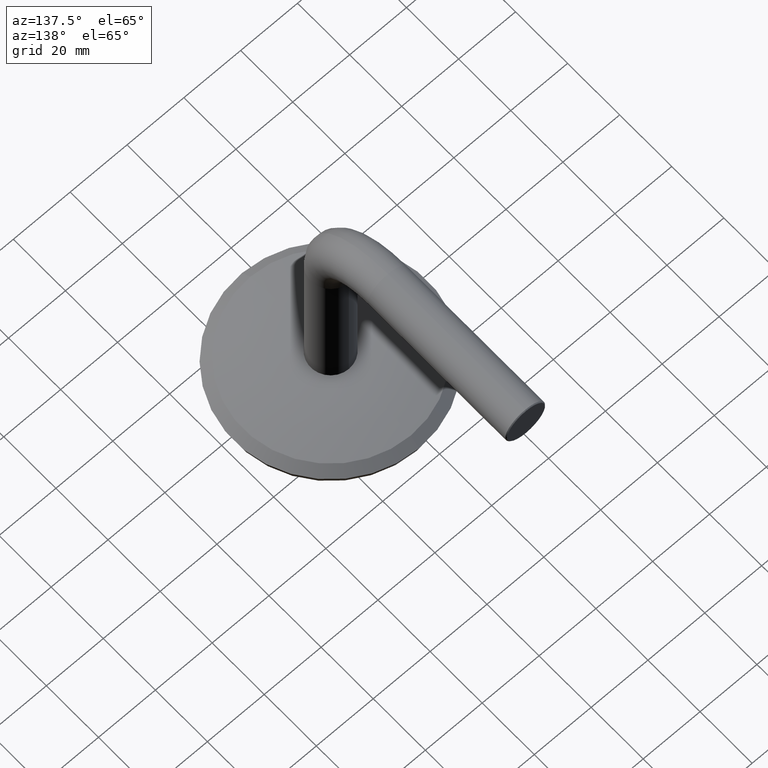
[diagram: clean part render]
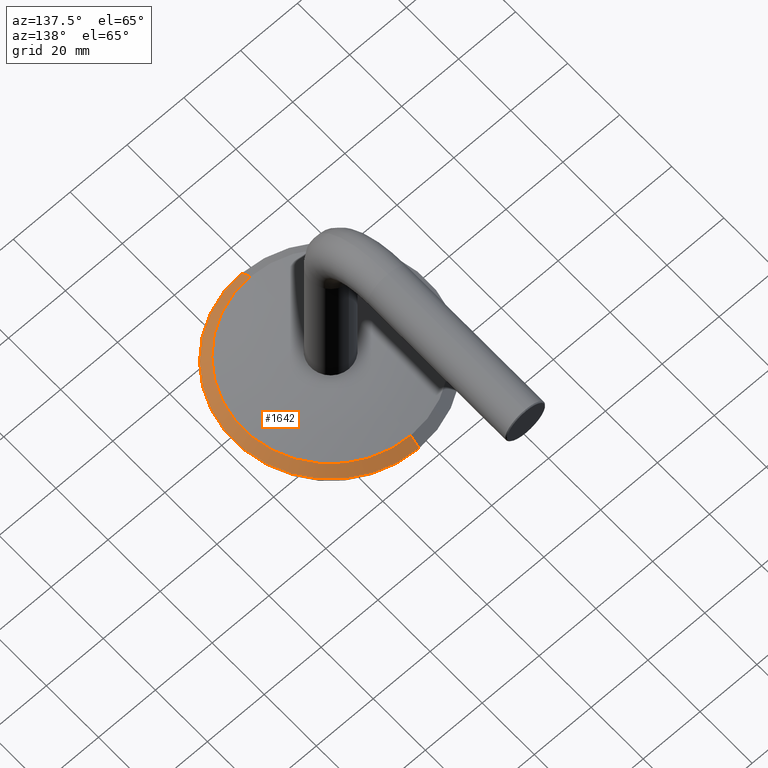
[diagram: same view with one face highlighted and labeled with its STEP entity id]
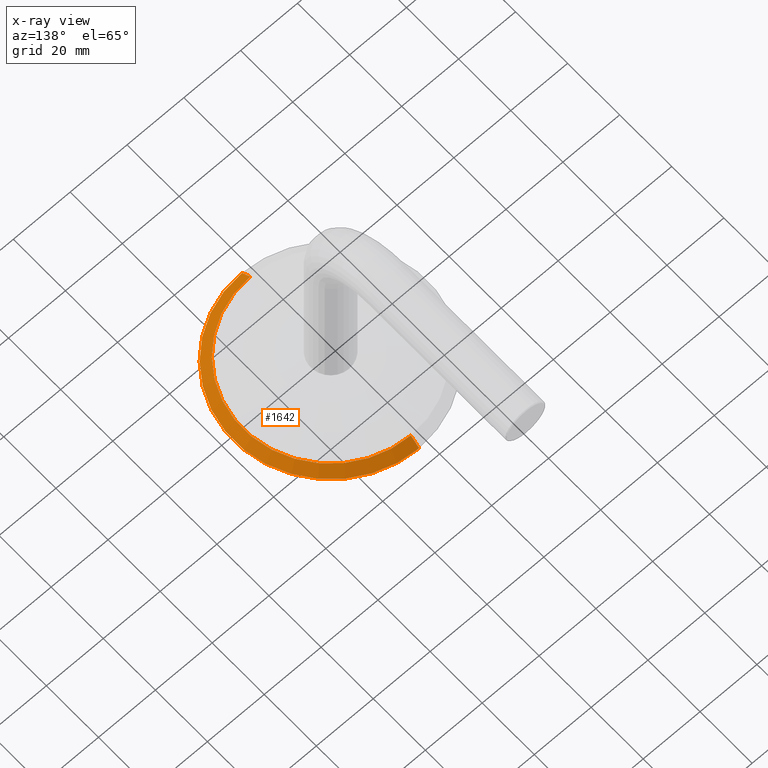
[diagram: x-ray of the same camera — body ghosted, the highlighted face saturated]
A machine part, auxiliary view. The second image highlights one B-rep face of the part: STEP entity #1642.
The next image is the same camera in x-ray: the body ghosted, the highlighted face saturated — about 0% of this face is hidden behind the body in this view.
In plain terms, the highlighted conical surface has half-angle 49.03 deg.
Its self-contained STEP definition (entity closure, byte-faithful):
#825 = CARTESIAN_POINT ( 'NONE',  ( 4.163799117101000559E-15, 3.070234033247562611, 34.00000000000000000 ) ) ;
#1033 = CARTESIAN_POINT ( 'NONE',  ( 0.000000000000000000, 5.832423396846378338, 0.000000000000000000 ) ) ;
#1327 = LINE ( 'NONE', #12561, #11121 ) ;
#1416 = DIRECTION ( 'NONE',  ( -0.000000000000000000, -1.000000000000000000, -0.000000000000000000 ) ) ;
#1642 = ADVANCED_FACE ( 'NONE', ( #6360 ), #7401, .T. ) ;
#2735 = CARTESIAN_POINT ( 'NONE',  ( 0.000000000000000000, 5.832423396846378338, -30.81906958466698754 ) ) ;
#3445 = AXIS2_PLACEMENT_3D ( 'NONE', #1033, #12587, #7372 ) ;
#3848 = ORIENTED_EDGE ( 'NONE', *, *, #12657, .F. ) ;
#3864 = ORIENTED_EDGE ( 'NONE', *, *, #7561, .F. ) ;
#3954 = VERTEX_POINT ( 'NONE', #10322 ) ;
#4156 = DIRECTION ( 'NONE',  ( 9.246773247622443815E-17, -0.6556599193418465310, 0.7550563357582289470 ) ) ;
#4853 = VERTEX_POINT ( 'NONE', #12684 ) ;
#5456 = DIRECTION ( 'NONE',  ( -0.000000000000000000, -1.000000000000000000, -0.000000000000000000 ) ) ;
#6360 = FACE_OUTER_BOUND ( 'NONE', #7014, .T. ) ;
#6789 = AXIS2_PLACEMENT_3D ( 'NONE', #7847, #1416, #9895 ) ;
#6912 = AXIS2_PLACEMENT_3D ( 'NONE', #11836, #5456, #7587 ) ;
#6936 = VERTEX_POINT ( 'NONE', #13520 ) ;
#7001 = EDGE_CURVE ( 'NONE', #7312, #6936, #10152, .T. ) ;
#7014 = EDGE_LOOP ( 'NONE', ( #10591, #8604, #3848, #3864 ) ) ;
#7312 = VERTEX_POINT ( 'NONE', #2735 ) ;
#7372 = DIRECTION ( 'NONE',  ( 0.000000000000000000, 0.000000000000000000, -1.000000000000000000 ) ) ;
#7401 = CONICAL_SURFACE ( 'NONE', #6789, 34.00000000000000000, 0.8557400374771453322 ) ;
#7561 = EDGE_CURVE ( 'NONE', #7312, #3954, #1327, .T. ) ;
#7587 = DIRECTION ( 'NONE',  ( 0.000000000000000000, 0.000000000000000000, -1.000000000000000000 ) ) ;
#7847 = CARTESIAN_POINT ( 'NONE',  ( 0.000000000000000000, 3.070234033247562611, 0.000000000000000000 ) ) ;
#8273 = DIRECTION ( 'NONE',  ( 0.000000000000000000, -0.6556599193418465310, -0.7550563357582289470 ) ) ;
#8604 = ORIENTED_EDGE ( 'NONE', *, *, #13519, .T. ) ;
#9563 = LINE ( 'NONE', #825, #13719 ) ;
#9895 = DIRECTION ( 'NONE',  ( 0.000000000000000000, 0.000000000000000000, -1.000000000000000000 ) ) ;
#10082 = CIRCLE ( 'NONE', #6912, 34.00000000000000000 ) ;
#10152 = CIRCLE ( 'NONE', #3445, 30.81906958466698043 ) ;
#10322 = CARTESIAN_POINT ( 'NONE',  ( 0.000000000000000000, 3.070234033247562611, -34.00000000000000000 ) ) ;
#10591 = ORIENTED_EDGE ( 'NONE', *, *, #7001, .T. ) ;
#11121 = VECTOR ( 'NONE', #8273, 999.9999999999998863 ) ;
#11836 = CARTESIAN_POINT ( 'NONE',  ( 0.000000000000000000, 3.070234033247562611, 0.000000000000000000 ) ) ;
#12561 = CARTESIAN_POINT ( 'NONE',  ( 0.000000000000000000, 3.070234033247562611, -34.00000000000000000 ) ) ;
#12587 = DIRECTION ( 'NONE',  ( -0.000000000000000000, -1.000000000000000000, -0.000000000000000000 ) ) ;
#12657 = EDGE_CURVE ( 'NONE', #3954, #4853, #10082, .T. ) ;
#12684 = CARTESIAN_POINT ( 'NONE',  ( 4.163799117101000559E-15, 3.070234033247562611, 34.00000000000000000 ) ) ;
#13519 = EDGE_CURVE ( 'NONE', #6936, #4853, #9563, .T. ) ;
#13520 = CARTESIAN_POINT ( 'NONE',  ( 3.774247491956197357E-15, 5.832423396846378338, 30.81906958466698754 ) ) ;
#13719 = VECTOR ( 'NONE', #4156, 999.9999999999998863 ) ;